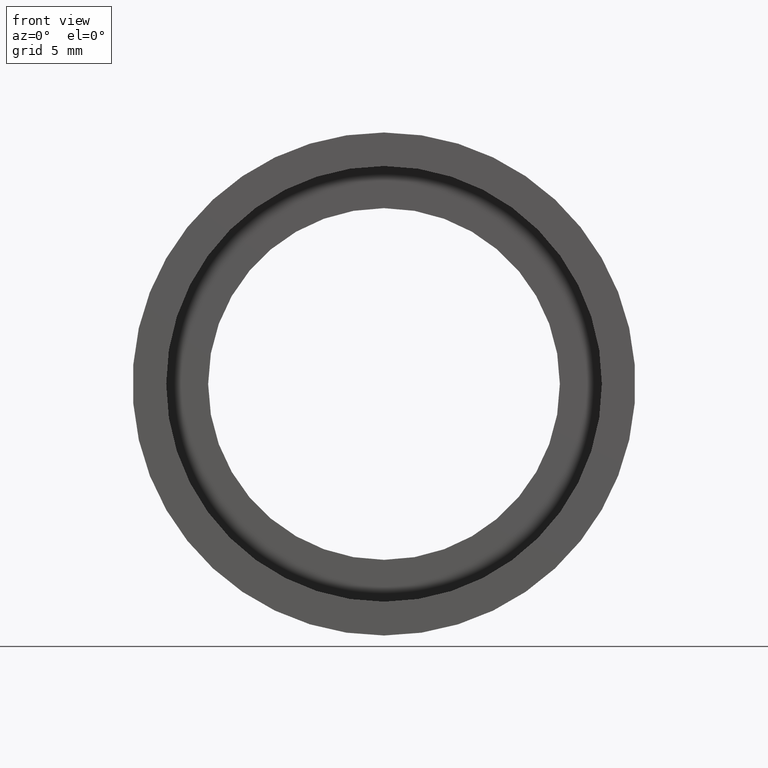
[diagram: clean part render]
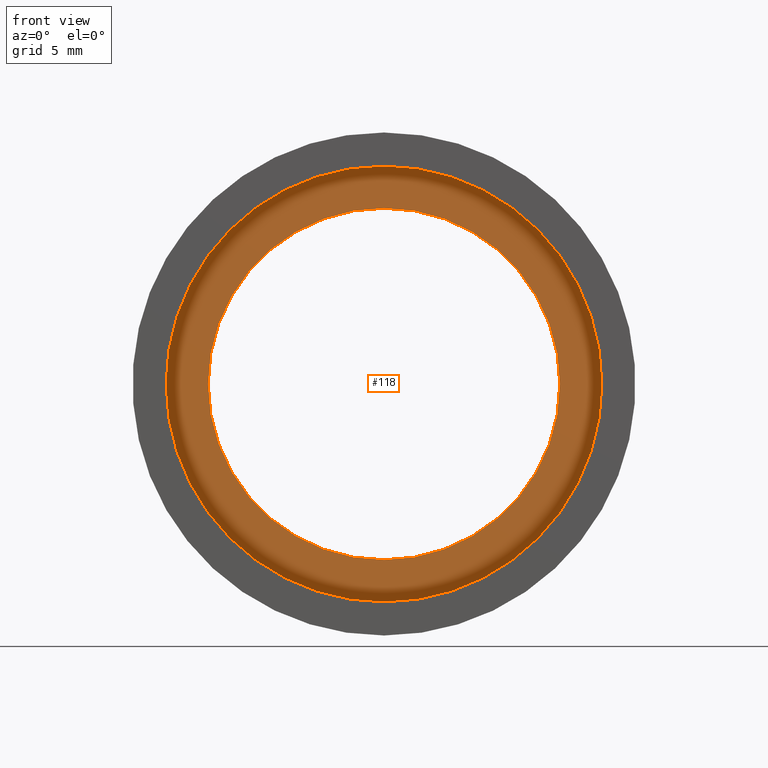
[diagram: same view with one face highlighted and labeled with its STEP entity id]
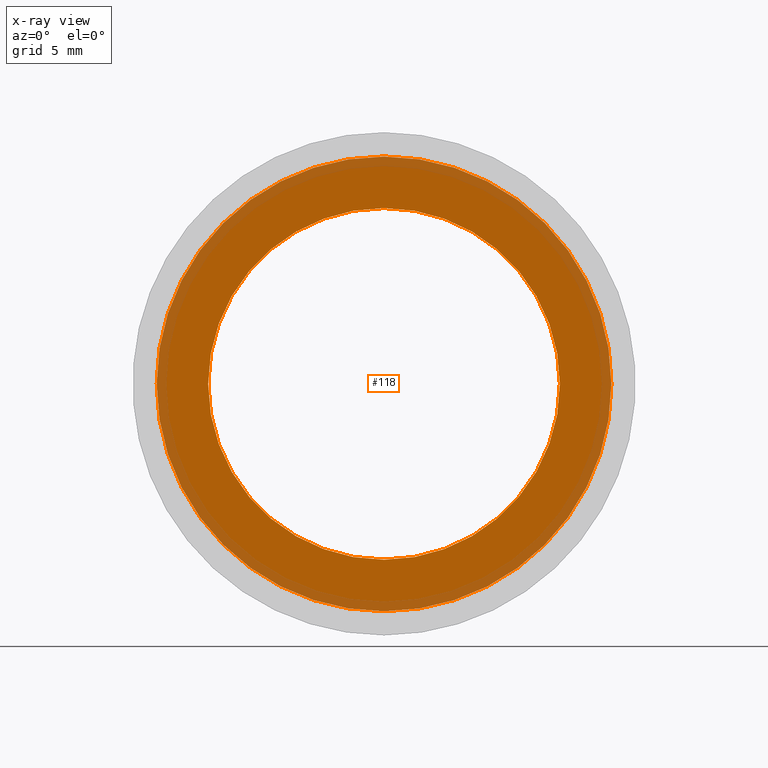
[diagram: x-ray of the same camera — body ghosted, the highlighted face saturated]
A machine part, front view. The second image highlights one B-rep face of the part: STEP entity #118.
The next image is the same camera in x-ray: the body ghosted, the highlighted face saturated — about 20% of this face is hidden behind the body in this view.
In plain terms, the highlighted planar face has unit normal (-0, 1, 0).
Its self-contained STEP definition (entity closure, byte-faithful):
#1 = DIRECTION ( 'NONE',  ( 0.0000000000000000000, 0.0000000000000000000, 1.000000000000000000 ) ) ;
#20 = EDGE_LOOP ( 'NONE', ( #90, #251 ) ) ;
#29 = CIRCLE ( 'NONE', #135, 11.10000000000000700 ) ;
#35 = DIRECTION ( 'NONE',  ( -0.0000000000000000000, 1.000000000000000000, 0.0000000000000000000 ) ) ;
#39 = AXIS2_PLACEMENT_3D ( 'NONE', #407, #185, #318 ) ;
#43 = VERTEX_POINT ( 'NONE', #259 ) ;
#60 = VERTEX_POINT ( 'NONE', #414 ) ;
#61 = CIRCLE ( 'NONE', #434, 14.35000000000000500 ) ;
#70 = DIRECTION ( 'NONE',  ( 0.0000000000000000000, 0.0000000000000000000, 1.000000000000000000 ) ) ;
#80 = CARTESIAN_POINT ( 'NONE',  ( 0.0000000000000000000, 5.499999999999998200, 0.0000000000000000000 ) ) ;
#83 = VERTEX_POINT ( 'NONE', #265 ) ;
#90 = ORIENTED_EDGE ( 'NONE', *, *, #175, .T. ) ;
#108 = FACE_OUTER_BOUND ( 'NONE', #426, .T. ) ;
#118 = ADVANCED_FACE ( 'NONE', ( #108, #422 ), #190, .F. ) ;
#129 = CARTESIAN_POINT ( 'NONE',  ( 14.35000000000000500, 5.500000000000000000, 0.0000000000000000000 ) ) ;
#135 = AXIS2_PLACEMENT_3D ( 'NONE', #352, #401, #70 ) ;
#146 = DIRECTION ( 'NONE',  ( -0.0000000000000000000, 1.000000000000000000, -0.0000000000000000000 ) ) ;
#151 = AXIS2_PLACEMENT_3D ( 'NONE', #129, #35, #278 ) ;
#168 = CARTESIAN_POINT ( 'NONE',  ( 0.0000000000000000000, 5.499999999999998200, 0.0000000000000000000 ) ) ;
#175 = EDGE_CURVE ( 'NONE', #43, #83, #29, .T. ) ;
#185 = DIRECTION ( 'NONE',  ( -0.0000000000000000000, 1.000000000000000000, -0.0000000000000000000 ) ) ;
#190 = PLANE ( 'NONE',  #151 ) ;
#197 = DIRECTION ( 'NONE',  ( -0.0000000000000000000, 1.000000000000000000, -0.0000000000000000000 ) ) ;
#251 = ORIENTED_EDGE ( 'NONE', *, *, #295, .T. ) ;
#253 = VERTEX_POINT ( 'NONE', #325 ) ;
#259 = CARTESIAN_POINT ( 'NONE',  ( 0.0000000000000000000, 5.499999999999998200, 11.10000000000000700 ) ) ;
#265 = CARTESIAN_POINT ( 'NONE',  ( 1.359357947053563100E-015, 5.499999999999998200, -11.10000000000000700 ) ) ;
#278 = DIRECTION ( 'NONE',  ( 0.0000000000000000000, 0.0000000000000000000, 1.000000000000000000 ) ) ;
#295 = EDGE_CURVE ( 'NONE', #83, #43, #303, .T. ) ;
#298 = ORIENTED_EDGE ( 'NONE', *, *, #406, .F. ) ;
#303 = CIRCLE ( 'NONE', #39, 11.10000000000000700 ) ;
#316 = CIRCLE ( 'NONE', #386, 14.35000000000000500 ) ;
#318 = DIRECTION ( 'NONE',  ( 0.0000000000000000000, 0.0000000000000000000, 1.000000000000000000 ) ) ;
#320 = ORIENTED_EDGE ( 'NONE', *, *, #383, .F. ) ;
#325 = CARTESIAN_POINT ( 'NONE',  ( 0.0000000000000000000, 5.499999999999998200, 14.35000000000000500 ) ) ;
#352 = CARTESIAN_POINT ( 'NONE',  ( 0.0000000000000000000, 5.499999999999998200, 0.0000000000000000000 ) ) ;
#376 = DIRECTION ( 'NONE',  ( 0.0000000000000000000, 0.0000000000000000000, 1.000000000000000000 ) ) ;
#383 = EDGE_CURVE ( 'NONE', #253, #60, #61, .T. ) ;
#386 = AXIS2_PLACEMENT_3D ( 'NONE', #80, #146, #1 ) ;
#401 = DIRECTION ( 'NONE',  ( -0.0000000000000000000, 1.000000000000000000, -0.0000000000000000000 ) ) ;
#406 = EDGE_CURVE ( 'NONE', #60, #253, #316, .T. ) ;
#407 = CARTESIAN_POINT ( 'NONE',  ( 0.0000000000000000000, 5.499999999999998200, 0.0000000000000000000 ) ) ;
#414 = CARTESIAN_POINT ( 'NONE',  ( 1.757368156776452800E-015, 5.499999999999998200, -14.35000000000000500 ) ) ;
#422 = FACE_BOUND ( 'NONE', #20, .T. ) ;
#426 = EDGE_LOOP ( 'NONE', ( #320, #298 ) ) ;
#434 = AXIS2_PLACEMENT_3D ( 'NONE', #168, #197, #376 ) ;